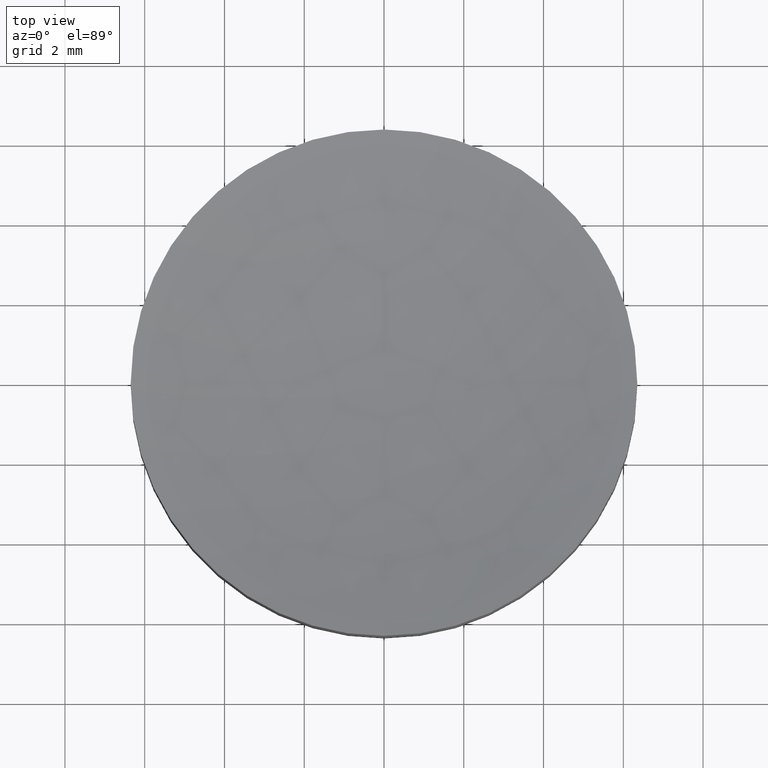
[diagram: clean part render]
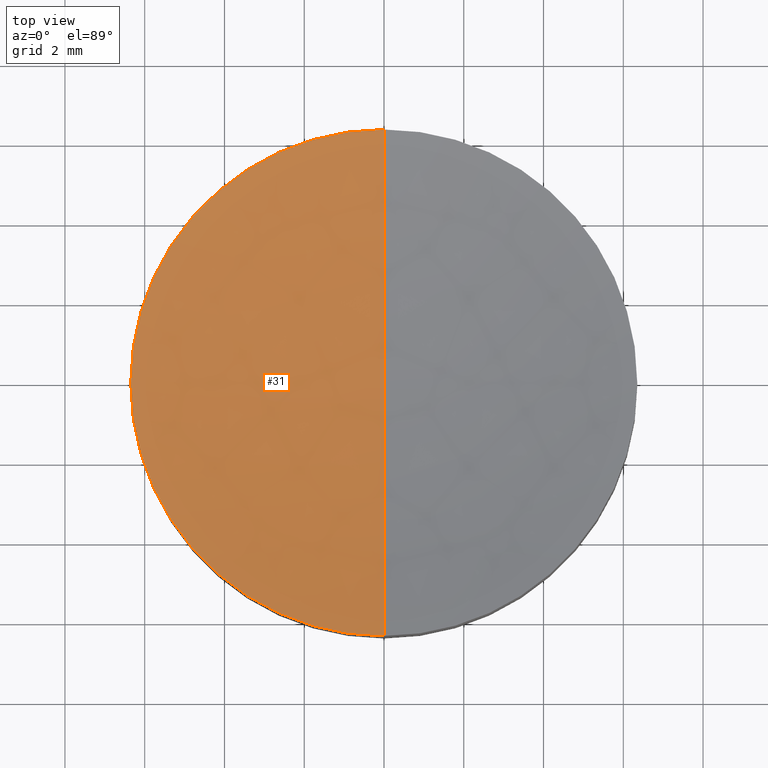
[diagram: same view with one face highlighted and labeled with its STEP entity id]
A machine part, top view. The second image highlights one B-rep face of the part: STEP entity #31.
In plain terms, the highlighted face is a freeform B-spline surface patch.
Its self-contained STEP definition (entity closure, byte-faithful):
#19 = ORIENTED_EDGE ( 'NONE', *, *, #293, .F. ) ;
#23 = CARTESIAN_POINT ( 'NONE',  ( -2.097568141156064900, -6.424929541777834700, 3.022462348102942000 ) ) ;
#28 = CARTESIAN_POINT ( 'NONE',  ( -4.325579220855152200, 2.177902016982218700, 2.296096373014302500 ) ) ;
#31 = ADVANCED_FACE ( 'NONE', ( #186 ), #220, .F. ) ;
#33 = ORIENTED_EDGE ( 'NONE', *, *, #185, .F. ) ;
#36 = CARTESIAN_POINT ( 'NONE',  ( 3.552713678800499400E-015, -6.350000000000000500, 3.005500004428780500 ) ) ;
#53 = CARTESIAN_POINT ( 'NONE',  ( 3.552713678800500100E-015, -2.177902016982221900, 2.055102029540439200 ) ) ;
#56 = CARTESIAN_POINT ( 'NONE',  ( -6.227957547520603900, -6.424929541777834700, 3.718589182496088600 ) ) ;
#64 = DIRECTION ( 'NONE',  ( -0.0000000000000000000, -0.0000000000000000000, -1.000000000000000000 ) ) ;
#74 = CARTESIAN_POINT ( 'NONE',  ( -2.169502962630948800, 2.177902016982218700, 2.055102029540436500 ) ) ;
#96 = CARTESIAN_POINT ( 'NONE',  ( 3.552713678800499400E-015, 6.424929541777832900, 3.022462348102938900 ) ) ;
#111 = DIRECTION ( 'NONE',  ( -0.0000000000000000000, -0.0000000000000000000, -1.000000000000000000 ) ) ;
#113 = DIRECTION ( 'NONE',  ( -1.000000000000000000, 0.0000000000000000000, 0.0000000000000000000 ) ) ;
#114 = DIRECTION ( 'NONE',  ( 1.000000000000000000, 8.881784197001252300E-016, 0.0000000000000000000 ) ) ;
#121 = CARTESIAN_POINT ( 'NONE',  ( -4.182154770929376000, 6.424929541777832900, 3.255465974176158500 ) ) ;
#126 = AXIS2_PLACEMENT_3D ( 'NONE', #246, #113, #138 ) ;
#138 = DIRECTION ( 'NONE',  ( 0.0000000000000000000, 1.000000000000000000, 2.398511546459463900E-016 ) ) ;
#140 = CARTESIAN_POINT ( 'NONE',  ( -6.441541557281133200, -2.177902016982221900, 2.775102109609575200 ) ) ;
#141 = CARTESIAN_POINT ( 'NONE',  ( -6.441541557281134100, 2.177902016982218300, 2.775102109609572000 ) ) ;
#142 = EDGE_LOOP ( 'NONE', ( #19, #33, #188 ) ) ;
#150 = DIRECTION ( 'NONE',  ( 1.000000000000000000, 0.0000000000000000000, 0.0000000000000000000 ) ) ;
#163 = CARTESIAN_POINT ( 'NONE',  ( 3.552713678800499400E-015, -6.424929541777834700, 3.022462348102942500 ) ) ;
#181 = CIRCLE ( 'NONE', #265, 6.349999999999999600 ) ;
#185 = EDGE_CURVE ( 'NONE', #206, #223, #198, .T. ) ;
#186 = FACE_OUTER_BOUND ( 'NONE', #142, .T. ) ;
#188 = ORIENTED_EDGE ( 'NONE', *, *, #243, .F. ) ;
#189 = CARTESIAN_POINT ( 'NONE',  ( -4.182154770929375200, -6.424929541777834700, 3.255465974176161600 ) ) ;
#191 = CARTESIAN_POINT ( 'NONE',  ( 3.552713678800500100E-015, 2.177902016982218300, 2.055102029540436500 ) ) ;
#198 = CIRCLE ( 'NONE', #215, 6.349999999999999600 ) ;
#202 = CARTESIAN_POINT ( 'NONE',  ( -6.349999999999999600, 1.998896044546239400E-015, 3.005500004428780100 ) ) ;
#206 = VERTEX_POINT ( 'NONE', #202 ) ;
#214 = CARTESIAN_POINT ( 'NONE',  ( -2.169502962630948800, -2.177902016982220500, 2.055102029540439600 ) ) ;
#215 = AXIS2_PLACEMENT_3D ( 'NONE', #289, #64, #114 ) ;
#220 =( BOUNDED_SURFACE ( )  B_SPLINE_SURFACE ( 3, 3, ( 
 ( #96, #252, #121, #280 ),
 ( #191, #74, #28, #141 ),
 ( #53, #214, #255, #140 ),
 ( #163, #23, #189, #56 ) ),
 .UNSPECIFIED., .F., .F., .F. ) 
 B_SPLINE_SURFACE_WITH_KNOTS ( ( 4, 4 ),
 ( 4, 4 ),
 ( 0.0000000000000000000, 1.000000000000000000 ),
 ( 0.0000000000000000000, 1.000000000000000000 ),
 .UNSPECIFIED. ) 
 GEOMETRIC_REPRESENTATION_ITEM ( )  RATIONAL_B_SPLINE_SURFACE ( (
 ( 1.000000000000000000, 0.9958741073760455400, 0.9958741073760455400, 1.000000000000000000),
 ( 0.9833514840856564200, 0.9792942814507127300, 0.9792942814507127300, 0.9833514840856564200),
 ( 0.9833514840856564200, 0.9792942814507127300, 0.9792942814507127300, 0.9833514840856564200),
 ( 1.000000000000000000, 0.9958741073760455400, 0.9958741073760455400, 1.000000000000000000) ) ) 
 REPRESENTATION_ITEM ( '' )  SURFACE ( )  );
#223 = VERTEX_POINT ( 'NONE', #268 ) ;
#243 = EDGE_CURVE ( 'NONE', #287, #206, #181, .T. ) ;
#245 = CARTESIAN_POINT ( 'NONE',  ( 2.498001805406600200E-016, 1.221245327087670000E-015, 3.005500004428780100 ) ) ;
#246 = CARTESIAN_POINT ( 'NONE',  ( 3.552713678800500100E-015, 0.0000000000000000000, 31.23000000000000000 ) ) ;
#252 = CARTESIAN_POINT ( 'NONE',  ( -2.097568141156064900, 6.424929541777832900, 3.022462348102938900 ) ) ;
#255 = CARTESIAN_POINT ( 'NONE',  ( -4.325579220855151300, -2.177902016982220500, 2.296096373014306000 ) ) ;
#265 = AXIS2_PLACEMENT_3D ( 'NONE', #245, #111, #150 ) ;
#268 = CARTESIAN_POINT ( 'NONE',  ( 3.552713678800499400E-015, 6.350000000000001400, 3.005500004428780500 ) ) ;
#280 = CARTESIAN_POINT ( 'NONE',  ( -6.227957547520605700, 6.424929541777832900, 3.718589182496085500 ) ) ;
#287 = VERTEX_POINT ( 'NONE', #36 ) ;
#289 = CARTESIAN_POINT ( 'NONE',  ( 2.498001805406600200E-016, 1.221245327087670000E-015, 3.005500004428780100 ) ) ;
#290 = CIRCLE ( 'NONE', #126, 28.92999999999999600 ) ;
#293 = EDGE_CURVE ( 'NONE', #223, #287, #290, .T. ) ;